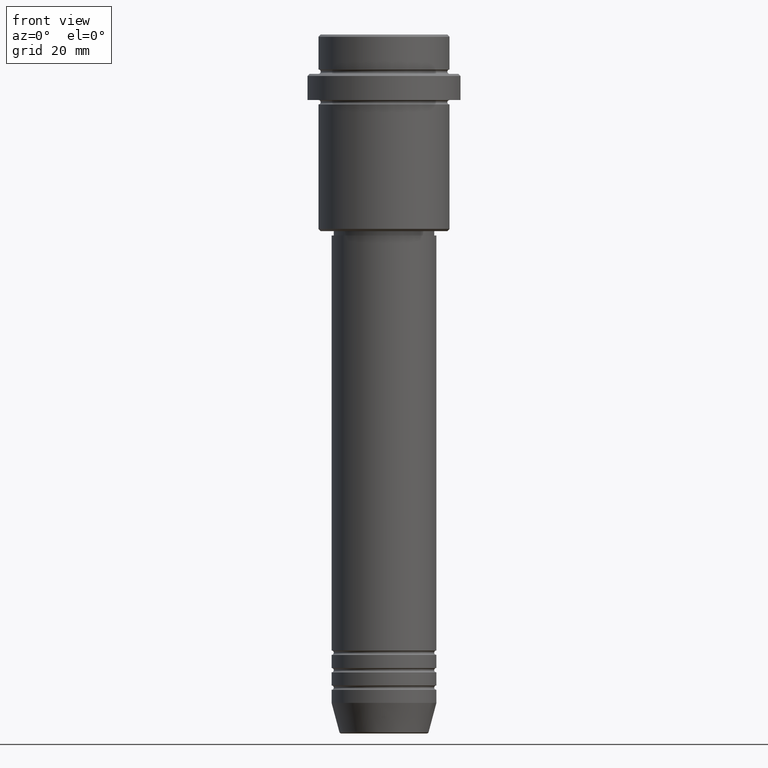
[diagram: clean part render]
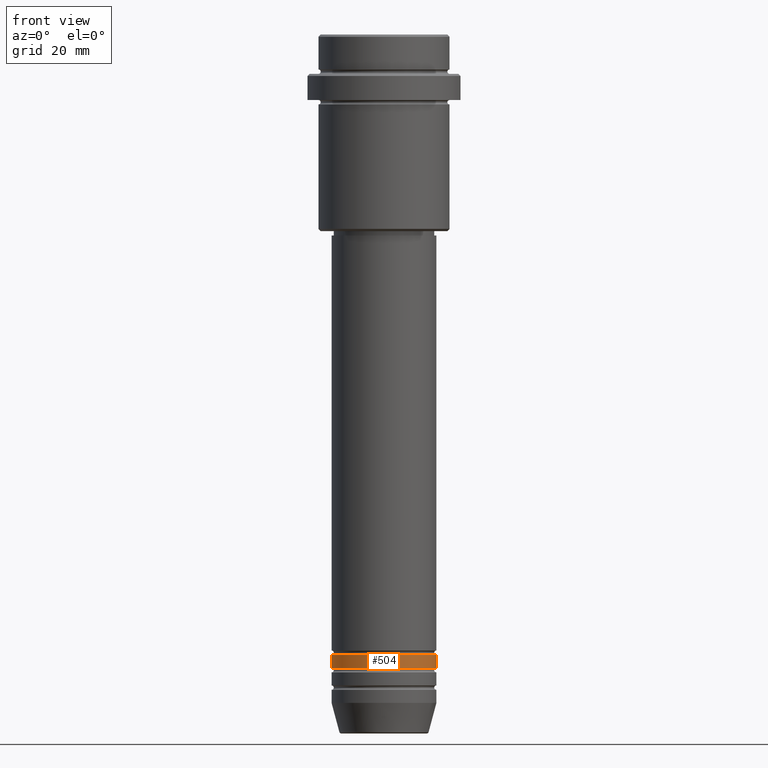
[diagram: same view with one face highlighted and labeled with its STEP entity id]
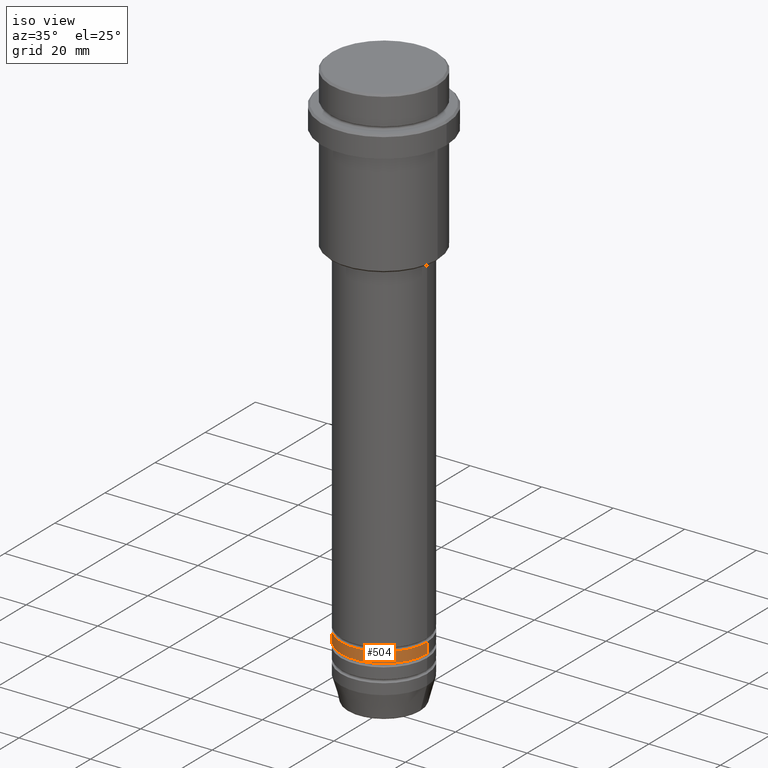
[diagram: same view with one face highlighted and labeled with its STEP entity id]
A machine part, front view. The second image highlights one B-rep face of the part: STEP entity #504.
A second angle (iso view) of the same face is appended — the face is thin or edge-on in the first view.
In plain terms, the highlighted cylindrical surface (partial cylindrical patch) has radius 12 mm, axis along (-0, -0, 1).
Its self-contained STEP definition (entity closure, byte-faithful):
#70 = DIRECTION ( 'NONE',  ( 1.000000000000000000, 0.000000000000000000, 0.000000000000000000 ) ) ;
#85 = CARTESIAN_POINT ( 'NONE',  ( 12.00000000000000000, 0.000000000000000000, -141.9999999999999147 ) ) ;
#90 = CARTESIAN_POINT ( 'NONE',  ( -12.00000000000000000, 1.469576158976823947E-15, -144.9999999999999147 ) ) ;
#104 = EDGE_CURVE ( 'NONE', #1196, #875, #566, .T. ) ;
#155 = EDGE_CURVE ( 'NONE', #1196, #1032, #1391, .T. ) ;
#227 = LINE ( 'NONE', #671, #957 ) ;
#255 = DIRECTION ( 'NONE',  ( -0.000000000000000000, -0.000000000000000000, 1.000000000000000000 ) ) ;
#339 = CARTESIAN_POINT ( 'NONE',  ( 12.00000000000000000, 0.000000000000000000, -144.9999999999999147 ) ) ;
#377 = CARTESIAN_POINT ( 'NONE',  ( 0.000000000000000000, 0.000000000000000000, -141.9999999999999147 ) ) ;
#382 = FACE_OUTER_BOUND ( 'NONE', #697, .T. ) ;
#411 = ORIENTED_EDGE ( 'NONE', *, *, #155, .F. ) ;
#419 = DIRECTION ( 'NONE',  ( -0.000000000000000000, -0.000000000000000000, 1.000000000000000000 ) ) ;
#502 = CARTESIAN_POINT ( 'NONE',  ( -12.00000000000000000, 1.469576158976823947E-15, -141.9999999999999147 ) ) ;
#504 = ADVANCED_FACE ( 'NONE', ( #382 ), #799, .T. ) ;
#525 = CARTESIAN_POINT ( 'NONE',  ( 0.000000000000000000, 0.000000000000000000, -144.9999999999999147 ) ) ;
#553 = ORIENTED_EDGE ( 'NONE', *, *, #1399, .T. ) ;
#566 = CIRCLE ( 'NONE', #587, 12.00000000000000000 ) ;
#587 = AXIS2_PLACEMENT_3D ( 'NONE', #525, #1075, #70 ) ;
#597 = ORIENTED_EDGE ( 'NONE', *, *, #1087, .F. ) ;
#617 = ORIENTED_EDGE ( 'NONE', *, *, #104, .T. ) ;
#671 = CARTESIAN_POINT ( 'NONE',  ( 12.00000000000000000, 0.000000000000000000, 0.000000000000000000 ) ) ;
#697 = EDGE_LOOP ( 'NONE', ( #411, #617, #553, #597 ) ) ;
#720 = DIRECTION ( 'NONE',  ( 1.000000000000000000, 0.000000000000000000, 0.000000000000000000 ) ) ;
#799 = CYLINDRICAL_SURFACE ( 'NONE', #1042, 12.00000000000000000 ) ;
#825 = DIRECTION ( 'NONE',  ( -0.000000000000000000, -0.000000000000000000, 1.000000000000000000 ) ) ;
#875 = VERTEX_POINT ( 'NONE', #339 ) ;
#914 = CIRCLE ( 'NONE', #1095, 12.00000000000000000 ) ;
#957 = VECTOR ( 'NONE', #1105, 1000.000000000000000 ) ;
#974 = CARTESIAN_POINT ( 'NONE',  ( -12.00000000000000000, 1.469576158976823947E-15, 0.000000000000000000 ) ) ;
#1032 = VERTEX_POINT ( 'NONE', #502 ) ;
#1042 = AXIS2_PLACEMENT_3D ( 'NONE', #1363, #255, #1135 ) ;
#1075 = DIRECTION ( 'NONE',  ( -0.000000000000000000, -0.000000000000000000, 1.000000000000000000 ) ) ;
#1087 = EDGE_CURVE ( 'NONE', #1032, #1263, #914, .T. ) ;
#1095 = AXIS2_PLACEMENT_3D ( 'NONE', #377, #825, #720 ) ;
#1105 = DIRECTION ( 'NONE',  ( -0.000000000000000000, -0.000000000000000000, 1.000000000000000000 ) ) ;
#1135 = DIRECTION ( 'NONE',  ( 1.000000000000000000, 0.000000000000000000, 0.000000000000000000 ) ) ;
#1181 = VECTOR ( 'NONE', #419, 1000.000000000000000 ) ;
#1196 = VERTEX_POINT ( 'NONE', #90 ) ;
#1263 = VERTEX_POINT ( 'NONE', #85 ) ;
#1363 = CARTESIAN_POINT ( 'NONE',  ( 0.000000000000000000, 0.000000000000000000, 0.000000000000000000 ) ) ;
#1391 = LINE ( 'NONE', #974, #1181 ) ;
#1399 = EDGE_CURVE ( 'NONE', #875, #1263, #227, .T. ) ;